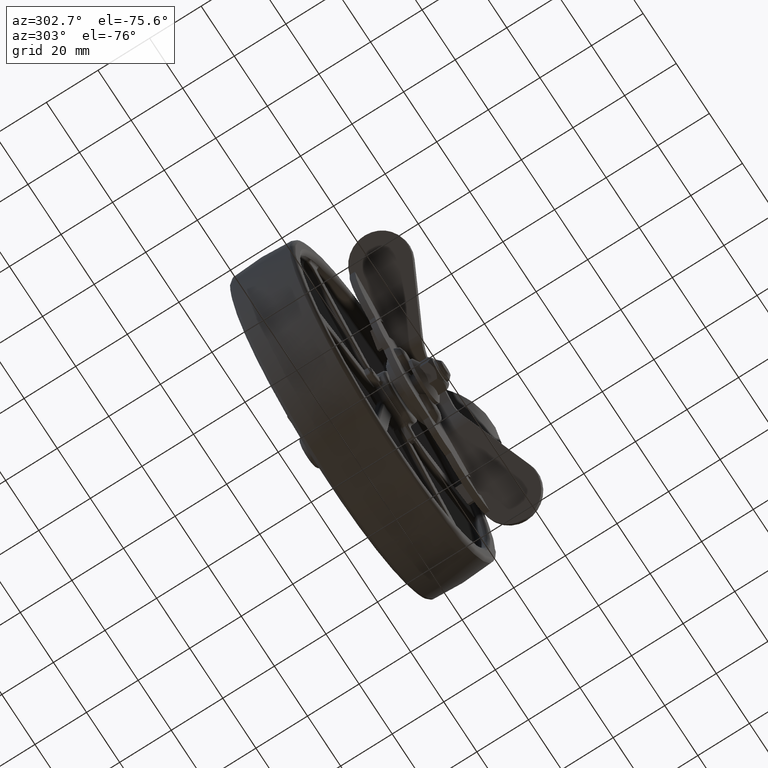
[diagram: clean part render]
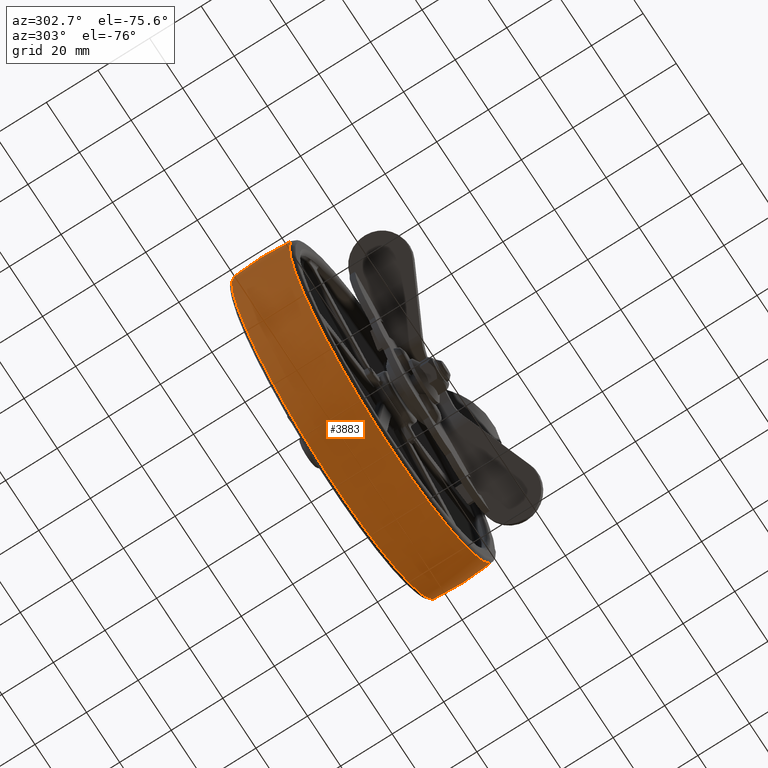
[diagram: same view with one face highlighted and labeled with its STEP entity id]
A machine part, auxiliary view. The second image highlights one B-rep face of the part: STEP entity #3883.
In plain terms, the highlighted face is a freeform B-spline surface patch.
Its self-contained STEP definition (entity closure, byte-faithful):
#2864=CARTESIAN_POINT('',(16.859412540729789,-11.167512254806500,-59.533276336664599));
#2865=VERTEX_POINT('',#2864);
#2876=CARTESIAN_POINT('',(61.562073801667132,-11.167497079689721,6.209828615817592));
#2877=VERTEX_POINT('',#2876);
#2878=CARTESIAN_POINT('',(16.859412540729789,-11.167512254806500,-59.533276336664599));
#2879=CARTESIAN_POINT('',(20.212601768629369,-11.167512041487020,-58.583957324824553));
#2880=CARTESIAN_POINT('',(26.546627474098770,-11.167511500410530,-56.196092281232673));
#2881=CARTESIAN_POINT('',(34.650844647316468,-11.167510430039380,-51.513217266853161));
#2882=CARTESIAN_POINT('',(40.763408307300629,-11.167509328131411,-46.712960850788910));
#2883=CARTESIAN_POINT('',(46.151893332100769,-11.167508114566690,-41.438695334534387));
#2884=CARTESIAN_POINT('',(51.019505964144443,-11.167506715878311,-35.372262864846853));
#2885=CARTESIAN_POINT('',(54.807573564299652,-11.167505237449079,-28.972504288344251));
#2886=CARTESIAN_POINT('',(57.656927354091238,-11.167503793420940,-22.729512174886739));
#2887=CARTESIAN_POINT('',(60.066262768716172,-11.167502165257281,-15.697861332711261));
#2888=CARTESIAN_POINT('',(61.967087846622810,-11.167499853022550,-5.725907653774351));
#2889=CARTESIAN_POINT('',(61.991460102447903,-11.167498067880659,1.959531485532161));
#2890=CARTESIAN_POINT('',(61.562073801667132,-11.167497079689721,6.209828615817592));
#2891=B_SPLINE_CURVE_WITH_KNOTS('',3,(#2878,#2879,#2880,#2881,#2882,#2883,#2884,#2885,#2886,#2887,#2888,#2889,#2890),.UNSPECIFIED.,.F.,.U.,(4,1,1,1,1,1,1,1,1,1,4),(0.000000061542721,10.454901093693890,20.235296696603399,27.992187850614389,33.725504471298912,42.831438082638051,51.262761681607742,55.984304788210373,63.403938468279748,73.521600256717349,86.337282302705916),.UNSPECIFIED.);
#2892=EDGE_CURVE('',#2865,#2877,#2891,.T.);
#3011=CARTESIAN_POINT('',(0.0,-11.167484169115880,61.874480111000857));
#3012=VERTEX_POINT('',#3011);
#3013=CARTESIAN_POINT('',(61.562073801667132,-11.167497079689721,6.209828615817592));
#3014=CARTESIAN_POINT('',(61.300618612357717,-11.167496478326941,8.802637607369919));
#3015=CARTESIAN_POINT('',(60.468733384019757,-11.167495310444760,13.838025633481820));
#3016=CARTESIAN_POINT('',(58.351111944056257,-11.167493647486751,21.007961432376369));
#3017=CARTESIAN_POINT('',(55.546617634283699,-11.167492129881580,27.551199062435149));
#3018=CARTESIAN_POINT('',(51.794530391388477,-11.167490599022800,34.151582128535047));
#3019=CARTESIAN_POINT('',(46.665959887515243,-11.167489012161280,40.993421886067949));
#3020=CARTESIAN_POINT('',(40.809732976362028,-11.167487681022420,46.732702084078348));
#3021=CARTESIAN_POINT('',(34.102316564995540,-11.167486500863330,51.821021910414878));
#3022=CARTESIAN_POINT('',(27.216166231640042,-11.167485574673471,55.814341124120247));
#3023=CARTESIAN_POINT('',(20.266796980847481,-11.167484932710559,58.582199570507640));
#3024=CARTESIAN_POINT('',(13.651982043134430,-11.167484498718030,60.453382112311303));
#3025=CARTESIAN_POINT('',(7.344069588394042,-11.167484235456831,61.588447659309843));
#3026=CARTESIAN_POINT('',(2.369054983598654,-11.167484169105080,61.874526162669788));
#3027=CARTESIAN_POINT('',(0.0,-11.167484169115880,61.874480111000857));
#3028=B_SPLINE_CURVE_WITH_KNOTS('',3,(#3013,#3014,#3015,#3016,#3017,#3018,#3019,#3020,#3021,#3022,#3023,#3024,#3025,#3026,#3027),.UNSPECIFIED.,.F.,.U.,(4,1,1,1,1,1,1,1,1,1,1,1,4),(0.000000063625208,7.817875324238727,15.280433800474290,22.387647942606410,29.139490740480099,38.023512796345088,47.973465746375808,53.659253695483009,63.253977730773713,71.782619969704228,76.046956726398847,83.864853657601969,90.972028015516145),.UNSPECIFIED.);
#3029=EDGE_CURVE('',#2877,#3012,#3028,.T.);
#3031=CARTESIAN_POINT('',(-61.460645238487857,-11.167500525878991,7.144238826185015));
#3032=VERTEX_POINT('',#3031);
#3049=CARTESIAN_POINT('',(0.0,-11.167512887776420,-61.874476883661302));
#3050=VERTEX_POINT('',#3049);
#3051=CARTESIAN_POINT('',(-61.460645238487857,-11.167500525878991,7.144238826185015));
#3052=CARTESIAN_POINT('',(-61.837397827743573,-11.167500815941420,3.905068952501670));
#3053=CARTESIAN_POINT('',(-62.046879644918917,-11.167501368783300,-1.815703918729785));
#3054=CARTESIAN_POINT('',(-61.286925470430681,-11.167502180365471,-9.263326387257077));
#3055=CARTESIAN_POINT('',(-59.938210727000730,-11.167502952268769,-15.789455594926361));
#3056=CARTESIAN_POINT('',(-57.970599916486158,-11.167503749663490,-22.019642356906878));
#3057=CARTESIAN_POINT('',(-54.632321404974967,-11.167504791017871,-29.471428217742279));
#3058=CARTESIAN_POINT('',(-50.435039330042507,-11.167505833841931,-36.172983154702031));
#3059=CARTESIAN_POINT('',(-45.122318610925639,-11.167506943455290,-42.549844749244492));
#3060=CARTESIAN_POINT('',(-40.571790678076759,-11.167507778242159,-46.854281965170642));
#3061=CARTESIAN_POINT('',(-35.304311674084147,-11.167508654183040,-50.932253115560243));
#3062=CARTESIAN_POINT('',(-30.009276566693430,-11.167509459248009,-54.276171680337100));
#3063=CARTESIAN_POINT('',(-23.866571586733290,-11.167510298074500,-57.203229990608463));
#3064=CARTESIAN_POINT('',(-17.716969137928139,-11.167511064201671,-59.396381960123541));
#3065=CARTESIAN_POINT('',(-9.918765652968368,-11.167511948921430,-61.308641152163652));
#3066=CARTESIAN_POINT('',(-3.804542743021428,-11.167512549386380,-61.874934833530290));
#3067=CARTESIAN_POINT('',(0.0,-11.167512887776420,-61.874476883661302));
#3068=B_SPLINE_CURVE_WITH_KNOTS('',3,(#3051,#3052,#3053,#3054,#3055,#3056,#3057,#3058,#3059,#3060,#3061,#3062,#3063,#3064,#3065,#3066,#3067),.UNSPECIFIED.,.F.,.U.,(4,1,1,1,1,1,1,1,1,1,1,1,1,1,4),(0.000000039420115,9.783002102424277,17.120323251788321,22.419494378025899,29.756807574465409,36.686497871696787,46.877152379133463,53.399125702721143,61.551726750418887,65.627997060884951,73.372920193509572,80.302592340007735,86.009386973565569,92.939062991523301,104.352599553203400),.UNSPECIFIED.);
#3069=EDGE_CURVE('',#3032,#3050,#3068,.T.);
#3071=CARTESIAN_POINT('',(0.0,-11.167512887776420,-61.874476883661302));
#3072=CARTESIAN_POINT('',(3.201635170217091,-11.167512887836750,-61.874699691053628));
#3073=CARTESIAN_POINT('',(8.893332369577895,-11.167512768045681,-61.431622996907578));
#3074=CARTESIAN_POINT('',(14.463495507291100,-11.167512438266630,-60.211849810956970));
#3075=CARTESIAN_POINT('',(16.859412540729789,-11.167512254806500,-59.533276336664599));
#3076=B_SPLINE_CURVE_WITH_KNOTS('',3,(#3071,#3072,#3073,#3074,#3075),.UNSPECIFIED.,.F.,.U.,(4,1,4),(2.658982E-009,9.604868347890324,17.075338912373219),.UNSPECIFIED.);
#3077=EDGE_CURVE('',#3050,#2865,#3076,.T.);
#3112=CARTESIAN_POINT('',(60.979178450908996,11.167510254334079,-10.487635164903971));
#3113=VERTEX_POINT('',#3112);
#3114=CARTESIAN_POINT('',(0.0,11.167508562899661,61.874476493552521));
#3115=VERTEX_POINT('',#3114);
#3116=CARTESIAN_POINT('',(60.979178450908996,11.167510254334079,-10.487635164903971));
#3117=CARTESIAN_POINT('',(61.478601085365398,11.167510186081820,-7.584534635294993));
#3118=CARTESIAN_POINT('',(62.006120382462882,11.167510061108530,-2.266613510976718));
#3119=CARTESIAN_POINT('',(61.797368496201507,11.167509899503530,4.615148366900036));
#3120=CARTESIAN_POINT('',(60.953810137998467,11.167509742606830,11.300047625986190));
#3121=CARTESIAN_POINT('',(59.344691213437258,11.167509582091460,18.143383047430820));
#3122=CARTESIAN_POINT('',(56.645223765877809,11.167509415823799,25.237825577364941));
#3123=CARTESIAN_POINT('',(53.666178024543271,11.167509281563460,30.971095415734140));
#3124=CARTESIAN_POINT('',(50.403380519643612,11.167509162706221,36.050180427882317));
#3125=CARTESIAN_POINT('',(46.409650094054200,11.167509043917450,41.130494742189498));
#3126=CARTESIAN_POINT('',(41.557563886916043,11.167508929794600,46.017043853428277));
#3127=CARTESIAN_POINT('',(35.972845611019132,11.167508825177480,50.503027070306693));
#3128=CARTESIAN_POINT('',(30.273620136380309,11.167508741174570,54.111990212474240));
#3129=CARTESIAN_POINT('',(23.198919733382429,11.167508661381010,57.549554413506357));
#3130=CARTESIAN_POINT('',(15.727113878364911,11.167508603626279,60.051033430748952));
#3131=CARTESIAN_POINT('',(7.574770243133680,11.167508569158279,61.564938035333363));
#3132=CARTESIAN_POINT('',(2.524923547632140,11.167508562560389,61.874550445542297));
#3133=CARTESIAN_POINT('',(0.0,11.167508562899661,61.874476493552521));
#3134=B_SPLINE_CURVE_WITH_KNOTS('',3,(#3116,#3117,#3118,#3119,#3120,#3121,#3122,#3123,#3124,#3125,#3126,#3127,#3128,#3129,#3130,#3131,#3132,#3133),.UNSPECIFIED.,.F.,.U.,(4,1,1,1,1,1,1,1,1,1,1,1,1,1,1,4),(0.000000022713920,8.837241241544945,15.991282867973780,20.620351768616569,29.036855375140949,37.032535634843228,43.344908210396461,48.394819300855822,55.127896216830109,62.702736228320887,69.015096249109462,76.589939015941269,82.902317693591939,92.581291697101491,100.156143605470110,107.730920848461910),.UNSPECIFIED.);
#3135=EDGE_CURVE('',#3113,#3115,#3134,.T.);
#3190=CARTESIAN_POINT('',(-61.479177486551421,11.167524272468970,6.982929484320373));
#3191=VERTEX_POINT('',#3190);
#3202=CARTESIAN_POINT('',(-61.460641722616238,11.167524335401341,7.144238311373103));
#3203=VERTEX_POINT('',#3202);
#3204=CARTESIAN_POINT('',(-61.460641722616238,11.167524335401341,7.144238311373103));
#3205=CARTESIAN_POINT('',(-61.479177486551421,11.167524272468970,6.982929484320373));
#3206=QUASI_UNIFORM_CURVE('',1,(#3204,#3205),.UNSPECIFIED.,.F.,.U.);
#3207=EDGE_CURVE('',#3203,#3191,#3206,.T.);
#3253=CARTESIAN_POINT('',(0.0,11.167511433451340,-61.874475294835499));
#3254=VERTEX_POINT('',#3253);
#3255=CARTESIAN_POINT('',(0.0,11.167511433451340,-61.874475294835499));
#3256=CARTESIAN_POINT('',(3.723425146069602,11.167511433460250,-61.874863321722067));
#3257=CARTESIAN_POINT('',(9.477603663697369,11.167511421494400,-61.353382744972613));
#3258=CARTESIAN_POINT('',(17.727486088509661,11.167511377216281,-59.423707348320526));
#3259=CARTESIAN_POINT('',(25.603050397451391,11.167511312353611,-56.596943560464887));
#3260=CARTESIAN_POINT('',(33.564199997875747,11.167511213069890,-52.270081898235887));
#3261=CARTESIAN_POINT('',(41.299676031775640,11.167511077852501,-46.377202631034883));
#3262=CARTESIAN_POINT('',(47.934096878337677,11.167510921519320,-39.564082869084451));
#3263=CARTESIAN_POINT('',(53.107268768947861,11.167510750937250,-32.129984193293630));
#3264=CARTESIAN_POINT('',(56.492682821448938,11.167510598454671,-25.484677115891468));
#3265=CARTESIAN_POINT('',(59.166074242919592,11.167510441575580,-18.647761356984532));
#3266=CARTESIAN_POINT('',(60.424771399355592,11.167510328329771,-13.712417667273590));
#3267=CARTESIAN_POINT('',(60.979178450908996,11.167510254334079,-10.487635164903971));
#3268=B_SPLINE_CURVE_WITH_KNOTS('',3,(#3255,#3256,#3257,#3258,#3259,#3260,#3261,#3262,#3263,#3264,#3265,#3266,#3267),.UNSPECIFIED.,.F.,.U.,(4,1,1,1,1,1,1,1,1,1,4),(0.000000065031912,11.170180972762980,17.263059039246741,25.386858173243500,36.218584732660752,44.342315221889208,54.497102647437359,64.651852603751379,71.421690270280237,76.837552469260316,86.653792890790299),.UNSPECIFIED.);
#3269=EDGE_CURVE('',#3254,#3113,#3268,.T.);
#3271=CARTESIAN_POINT('',(-61.479177486551421,11.167524272468970,6.982929484320373));
#3272=CARTESIAN_POINT('',(-61.846839553538373,11.167523973217360,3.747823875524663));
#3273=CARTESIAN_POINT('',(-62.065029893638787,11.167523334465470,-2.644548530951490));
#3274=CARTESIAN_POINT('',(-60.986447023596199,11.167522314605989,-11.559008161613910));
#3275=CARTESIAN_POINT('',(-59.109625229723342,11.167521407710950,-18.655218024552848));
#3276=CARTESIAN_POINT('',(-56.858686126387347,11.167520581912550,-24.626221627380751));
#3277=CARTESIAN_POINT('',(-54.482397946166742,11.167519856187120,-29.513196943082590));
#3278=CARTESIAN_POINT('',(-51.035433929058193,11.167518947702730,-35.203304290825400));
#3279=CARTESIAN_POINT('',(-46.820559476389803,11.167517986349811,-40.710923588203030));
#3280=CARTESIAN_POINT('',(-40.503219123820159,11.167516740074410,-47.078364798947867));
#3281=CARTESIAN_POINT('',(-33.518535990965013,11.167515550337480,-52.293301831945662));
#3282=CARTESIAN_POINT('',(-26.682155072353261,11.167514536181280,-55.939661351515241));
#3283=CARTESIAN_POINT('',(-20.533238692976429,11.167513700537720,-58.477135485113848));
#3284=CARTESIAN_POINT('',(-14.806744455237499,11.167512988023940,-60.202892248392139));
#3285=CARTESIAN_POINT('',(-7.597129635670187,11.167512176523051,-61.545925851223323));
#3286=CARTESIAN_POINT('',(-2.848934906841843,11.167511699387269,-61.874603074001321));
#3287=CARTESIAN_POINT('',(0.0,11.167511433451340,-61.874475294835499));
#3288=B_SPLINE_CURVE_WITH_KNOTS('',3,(#3271,#3272,#3273,#3274,#3275,#3276,#3277,#3278,#3279,#3280,#3281,#3282,#3283,#3284,#3285,#3286,#3287),.UNSPECIFIED.,.F.,.U.,(4,1,1,1,1,1,1,1,1,1,1,1,1,1,4),(0.000000038667153,9.767778815832259,19.128665423666529,26.861543502224048,31.745476500386570,38.257349873325140,43.141299071283441,51.688141688926748,59.013932250981007,70.002787851555155,77.735675032095429,82.212612040122551,89.945493544980778,95.643427133259692,104.190224133632800),.UNSPECIFIED.);
#3289=EDGE_CURVE('',#3191,#3254,#3288,.T.);
#3804=CARTESIAN_POINT('',(-61.328220287195165,-12.295962952238243,7.128894792006973));
#3805=CARTESIAN_POINT('',(-62.081977602067745,-6.171396763216775,7.216512801648682));
#3806=CARTESIAN_POINT('',(-62.081977602067745,0.0,7.216512801648682));
#3807=CARTESIAN_POINT('',(-62.081977602067745,6.171403680964750,7.216512801648682));
#3808=CARTESIAN_POINT('',(-61.328218603776563,12.295976630649973,7.128894596323582));
#3809=CARTESIAN_POINT('',(-61.741167340359226,-12.295962952238240,3.576407543662565));
#3810=CARTESIAN_POINT('',(-62.500000000000000,-6.171396763216771,3.620363545228846));
#3811=CARTESIAN_POINT('',(-62.499999999999993,0.0,3.620363545228846));
#3812=CARTESIAN_POINT('',(-62.500000000000000,6.171403680964750,3.620363545228846));
#3813=CARTESIAN_POINT('',(-61.741165645605506,12.295976630649969,3.576407445492572));
#3814=CARTESIAN_POINT('',(-61.741167340359240,-12.295962952238238,0.0));
#3815=CARTESIAN_POINT('',(-62.500000000000000,-6.171396763216773,0.0));
#3816=CARTESIAN_POINT('',(-62.500000000000000,0.0,0.0));
#3817=CARTESIAN_POINT('',(-62.500000000000014,6.171403680964750,0.0));
#3818=CARTESIAN_POINT('',(-61.741165645605506,12.295976630649978,0.0));
#3819=CARTESIAN_POINT('',(-61.741167340359233,-12.295962952238241,-61.741167340359233));
#3820=CARTESIAN_POINT('',(-62.500000000000007,-6.171396763216773,-62.500000000000007));
#3821=CARTESIAN_POINT('',(-62.500000000000000,0.0,-62.500000000000000));
#3822=CARTESIAN_POINT('',(-62.500000000000000,6.171403680964750,-62.500000000000000));
#3823=CARTESIAN_POINT('',(-61.741165645605513,12.295976630649974,-61.741165645605513));
#3824=CARTESIAN_POINT('',(0.0,-12.295962952238238,-61.741167340359240));
#3825=CARTESIAN_POINT('',(0.0,-6.171396763216773,-62.500000000000000));
#3826=CARTESIAN_POINT('',(0.0,0.0,-62.500000000000000));
#3827=CARTESIAN_POINT('',(0.0,6.171403680964750,-62.500000000000014));
#3828=CARTESIAN_POINT('',(0.0,12.295976630649978,-61.741165645605506));
#3829=CARTESIAN_POINT('',(61.741167340359233,-12.295962952238241,-61.741167340359233));
#3830=CARTESIAN_POINT('',(62.500000000000007,-6.171396763216773,-62.500000000000007));
#3831=CARTESIAN_POINT('',(62.500000000000000,0.0,-62.500000000000000));
#3832=CARTESIAN_POINT('',(62.500000000000000,6.171403680964750,-62.500000000000000));
#3833=CARTESIAN_POINT('',(61.741165645605513,12.295976630649974,-61.741165645605513));
#3834=CARTESIAN_POINT('',(61.741167340359240,-12.295962952238238,0.0));
#3835=CARTESIAN_POINT('',(62.500000000000000,-6.171396763216773,0.0));
#3836=CARTESIAN_POINT('',(62.500000000000000,0.0,0.0));
#3837=CARTESIAN_POINT('',(62.500000000000014,6.171403680964750,0.0));
#3838=CARTESIAN_POINT('',(61.741165645605506,12.295976630649978,0.0));
#3839=CARTESIAN_POINT('',(61.741167340359233,-12.295962952238241,61.741167340359233));
#3840=CARTESIAN_POINT('',(62.500000000000007,-6.171396763216773,62.500000000000007));
#3841=CARTESIAN_POINT('',(62.500000000000000,0.0,62.500000000000000));
#3842=CARTESIAN_POINT('',(62.500000000000000,6.171403680964750,62.500000000000000));
#3843=CARTESIAN_POINT('',(61.741165645605513,12.295976630649974,61.741165645605513));
#3844=CARTESIAN_POINT('',(0.0,-12.295962952238238,61.741167340359240));
#3845=CARTESIAN_POINT('',(0.0,-6.171396763216773,62.500000000000000));
#3846=CARTESIAN_POINT('',(0.0,0.0,62.500000000000000));
#3847=CARTESIAN_POINT('',(0.0,6.171403680964750,62.500000000000014));
#3848=CARTESIAN_POINT('',(0.0,12.295976630649978,61.741165645605506));
#3856=(BOUNDED_SURFACE()B_SPLINE_SURFACE(2,2,((#3804,#3809,#3814,#3819,#3824,#3829,#3834,#3839,#3844),(#3805,#3810,#3815,#3820,#3825,#3830,#3835,#3840,#3845),(#3806,#3811,#3816,#3821,#3826,#3831,#3836,#3841,#3846),(#3807,#3812,#3817,#3822,#3827,#3832,#3837,#3842,#3847),(#3808,#3813,#3818,#3823,#3828,#3833,#3838,#3843,#3848)),.UNSPECIFIED.,.F.,.F.,.U.)B_SPLINE_SURFACE_WITH_KNOTS((3,2,3),(3,2,2,2,3),(0.0,12.527873769515260,25.055761322032509),(0.0,8.284269519228245,111.837660112501990,215.391050705775800,318.944441299049570),.UNSPECIFIED.)GEOMETRIC_REPRESENTATION_ITEM()RATIONAL_B_SPLINE_SURFACE(((0.925297862695052,0.944330537078366,0.966988481872442,0.683764112861289,0.966988481872442,0.683764112861289,0.966988481872442,0.683764112861289,0.966988481872442),(0.939172677218255,0.958490746000060,0.981488446016934,0.694017135834821,0.981488446016934,0.694017135834821,0.981488446016934,0.694017135834821,0.981488446016934),(0.956886126402807,0.976568547383107,1.0,0.707106781186548,1.0,0.707106781186548,1.0,0.707106781186548,1.0),(0.939172657730151,0.958490726111100,0.981488425650765,0.694017121433765,0.981488425650765,0.694017121433765,0.981488425650765,0.694017121433765,0.981488425650765),(0.925297832165280,0.944330505920620,0.966988449967107,0.683764090300810,0.966988449967107,0.683764090300810,0.966988449967107,0.683764090300810,0.966988449967107)))REPRESENTATION_ITEM('')SURFACE());
#3857=ORIENTED_EDGE('',*,*,#3069,.F.);
#3858=CARTESIAN_POINT('',(-61.460645238487857,-11.167500525878991,7.144238826185015));
#3859=CARTESIAN_POINT('',(-61.926325103510749,-6.997191695514119,7.198370223569830));
#3860=CARTESIAN_POINT('',(-62.289411555962822,0.469215036400644,7.240575973041014));
#3861=CARTESIAN_POINT('',(-61.822762689107613,7.923943383591253,7.186331882005674));
#3862=CARTESIAN_POINT('',(-61.460641722616238,11.167524335401341,7.144238311373103));
#3863=B_SPLINE_CURVE_WITH_KNOTS('',3,(#3858,#3859,#3860,#3861,#3862),.UNSPECIFIED.,.F.,.U.,(4,1,4),(1.332779E-009,12.589711171722330,22.381723347674839),.UNSPECIFIED.);
#3864=EDGE_CURVE('',#3032,#3203,#3863,.T.);
#3865=ORIENTED_EDGE('',*,*,#3864,.T.);
#3866=ORIENTED_EDGE('',*,*,#3207,.T.);
#3867=ORIENTED_EDGE('',*,*,#3289,.T.);
#3868=ORIENTED_EDGE('',*,*,#3269,.T.);
#3869=ORIENTED_EDGE('',*,*,#3135,.T.);
#3870=CARTESIAN_POINT('',(0.0,-11.167484169115880,61.874480111000857));
#3871=CARTESIAN_POINT('',(0.0,-8.039751344449899,62.226009227041331));
#3872=CARTESIAN_POINT('',(0.0,-0.586492373119489,62.708817632433622));
#3873=CARTESIAN_POINT('',(0.0,6.881362708000559,62.356328515703687));
#3874=CARTESIAN_POINT('',(0.0,11.167508562899661,61.874476493552521));
#3875=B_SPLINE_CURVE_WITH_KNOTS('',3,(#3870,#3871,#3872,#3873,#3874),.UNSPECIFIED.,.F.,.U.,(4,1,4),(1.331763E-009,9.442279123399084,22.381691086559741),.UNSPECIFIED.);
#3876=EDGE_CURVE('',#3012,#3115,#3875,.T.);
#3877=ORIENTED_EDGE('',*,*,#3876,.F.);
#3878=ORIENTED_EDGE('',*,*,#3029,.F.);
#3879=ORIENTED_EDGE('',*,*,#2892,.F.);
#3880=ORIENTED_EDGE('',*,*,#3077,.F.);
#3881=EDGE_LOOP('',(#3857,#3865,#3866,#3867,#3868,#3869,#3877,#3878,#3879,#3880));
#3882=FACE_OUTER_BOUND('',#3881,.T.);
#3883=ADVANCED_FACE('',(#3882),#3856,.T.);